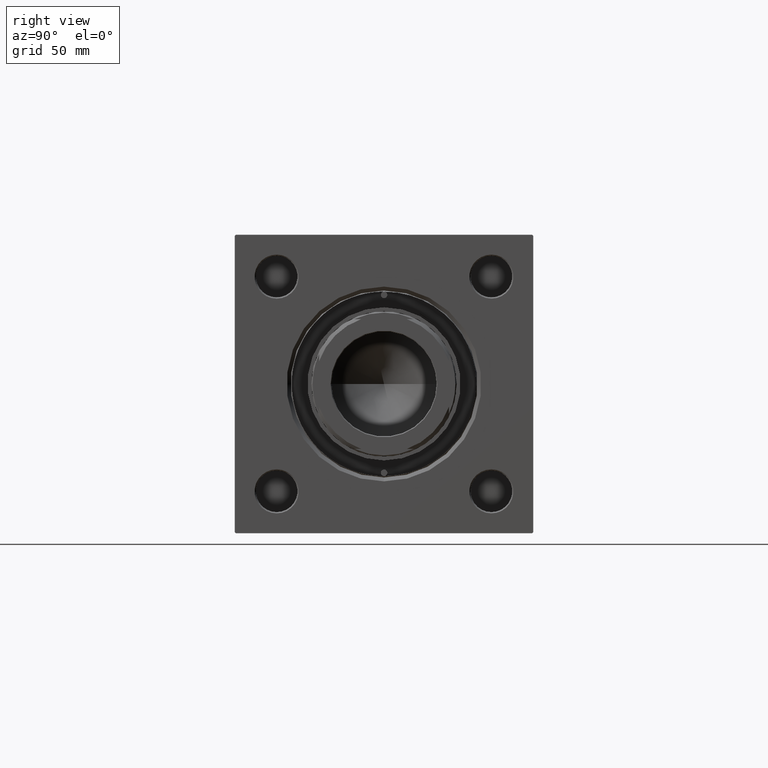
[diagram: clean part render]
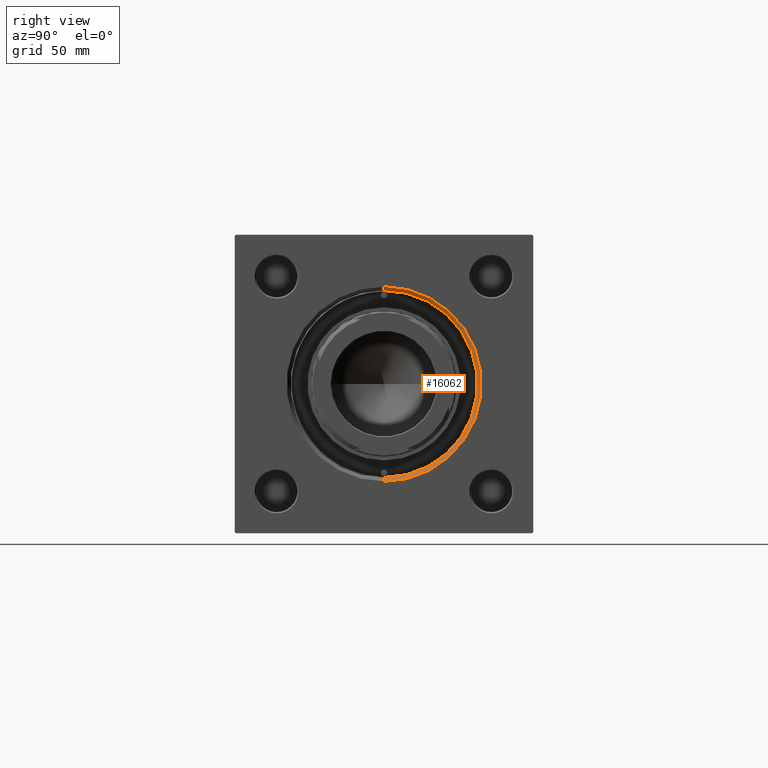
[diagram: same view with one face highlighted and labeled with its STEP entity id]
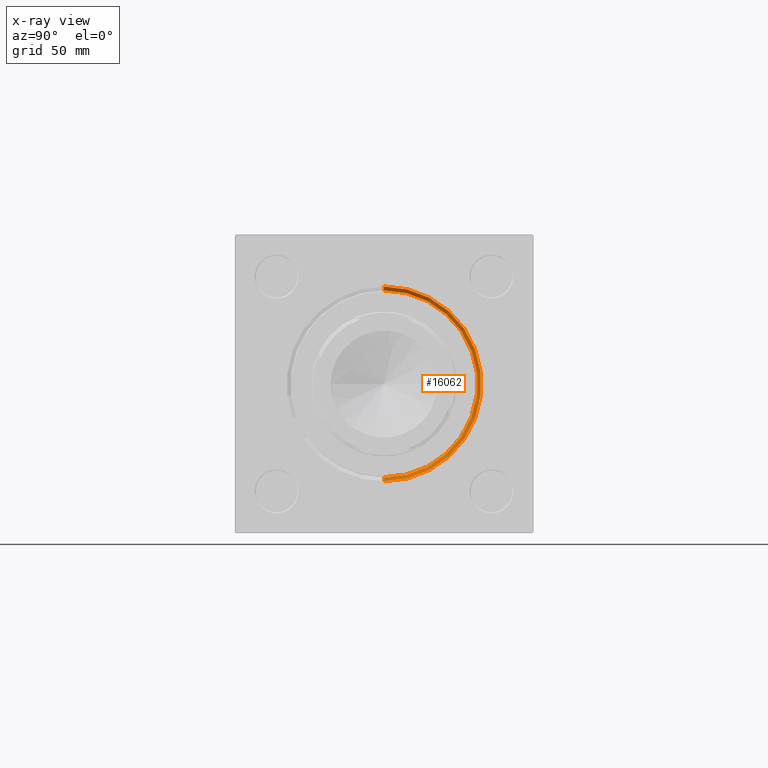
[diagram: x-ray of the same camera — body ghosted, the highlighted face saturated]
A machine part, right view. The second image highlights one B-rep face of the part: STEP entity #16062.
The next image is the same camera in x-ray: the body ghosted, the highlighted face saturated — about 0% of this face is hidden behind the body in this view.
In plain terms, the highlighted conical surface has half-angle 45 deg.
Its self-contained STEP definition (entity closure, byte-faithful):
#1267 = DIRECTION ( 'NONE',  ( 0.000000000000000000, 0.000000000000000000, 1.000000000000000000 ) ) ;
#1655 = CARTESIAN_POINT ( 'NONE',  ( 177.4999999999999716, 0.000000000000000000, 0.000000000000000000 ) ) ;
#2010 = DIRECTION ( 'NONE',  ( 0.000000000000000000, 0.000000000000000000, -1.000000000000000000 ) ) ;
#2255 = CARTESIAN_POINT ( 'NONE',  ( 177.4999999999999716, 0.000000000000000000, 0.000000000000000000 ) ) ;
#2907 = CARTESIAN_POINT ( 'NONE',  ( 179.0000000000000000, 4.592425496802575156E-15, 37.50000000000000711 ) ) ;
#3302 = ORIENTED_EDGE ( 'NONE', *, *, #9468, .F. ) ;
#4304 = CARTESIAN_POINT ( 'NONE',  ( 177.4999999999999716, 4.408728476930470856E-15, 36.00000000000000000 ) ) ;
#8087 = CARTESIAN_POINT ( 'NONE',  ( 177.4999999999999716, 0.000000000000000000, -36.00000000000000000 ) ) ;
#8417 = LINE ( 'NONE', #4304, #46313 ) ;
#9466 = DIRECTION ( 'NONE',  ( 1.000000000000000000, 0.000000000000000000, 0.000000000000000000 ) ) ;
#9468 = EDGE_CURVE ( 'NONE', #12859, #41616, #39246, .T. ) ;
#10857 = AXIS2_PLACEMENT_3D ( 'NONE', #44416, #32601, #1267 ) ;
#11996 = ORIENTED_EDGE ( 'NONE', *, *, #50557, .F. ) ;
#12859 = VERTEX_POINT ( 'NONE', #28950 ) ;
#12952 = DIRECTION ( 'NONE',  ( 0.000000000000000000, 0.000000000000000000, 1.000000000000000000 ) ) ;
#13054 = CARTESIAN_POINT ( 'NONE',  ( 179.0000000000000000, 0.000000000000000000, -37.50000000000000711 ) ) ;
#13464 = DIRECTION ( 'NONE',  ( 1.000000000000000000, 0.000000000000000000, 0.000000000000000000 ) ) ;
#14881 = CONICAL_SURFACE ( 'NONE', #19769, 36.00000000000000000, 0.7853981633974415066 ) ;
#15685 = ORIENTED_EDGE ( 'NONE', *, *, #43901, .T. ) ;
#16062 = ADVANCED_FACE ( 'NONE', ( #18422 ), #14881, .F. ) ;
#18422 = FACE_OUTER_BOUND ( 'NONE', #19912, .T. ) ;
#19769 = AXIS2_PLACEMENT_3D ( 'NONE', #2255, #9466, #2010 ) ;
#19912 = EDGE_LOOP ( 'NONE', ( #39167, #3302, #15685, #11996 ) ) ;
#23750 = DIRECTION ( 'NONE',  ( 0.7071067811865524577, 0.000000000000000000, -0.7071067811865426878 ) ) ;
#24782 = CIRCLE ( 'NONE', #10857, 37.50000000000000711 ) ;
#27162 = CARTESIAN_POINT ( 'NONE',  ( 177.4999999999999716, 4.408728476930470856E-15, 36.00000000000000000 ) ) ;
#28189 = EDGE_CURVE ( 'NONE', #41616, #36470, #8417, .T. ) ;
#28950 = CARTESIAN_POINT ( 'NONE',  ( 177.4999999999999716, 0.000000000000000000, -36.00000000000000000 ) ) ;
#32601 = DIRECTION ( 'NONE',  ( -1.000000000000000000, 0.000000000000000000, -0.000000000000000000 ) ) ;
#35371 = VECTOR ( 'NONE', #23750, 1000.000000000000000 ) ;
#36470 = VERTEX_POINT ( 'NONE', #2907 ) ;
#39167 = ORIENTED_EDGE ( 'NONE', *, *, #28189, .F. ) ;
#39246 = CIRCLE ( 'NONE', #46733, 36.00000000000000000 ) ;
#41616 = VERTEX_POINT ( 'NONE', #27162 ) ;
#43389 = VERTEX_POINT ( 'NONE', #13054 ) ;
#43614 = DIRECTION ( 'NONE',  ( 0.7071067811865524577, 8.659560562354873694E-17, 0.7071067811865426878 ) ) ;
#43901 = EDGE_CURVE ( 'NONE', #12859, #43389, #47145, .T. ) ;
#44416 = CARTESIAN_POINT ( 'NONE',  ( 179.0000000000000000, 0.000000000000000000, 0.000000000000000000 ) ) ;
#46313 = VECTOR ( 'NONE', #43614, 1000.000000000000000 ) ;
#46733 = AXIS2_PLACEMENT_3D ( 'NONE', #1655, #13464, #12952 ) ;
#47145 = LINE ( 'NONE', #8087, #35371 ) ;
#50557 = EDGE_CURVE ( 'NONE', #36470, #43389, #24782, .T. ) ;